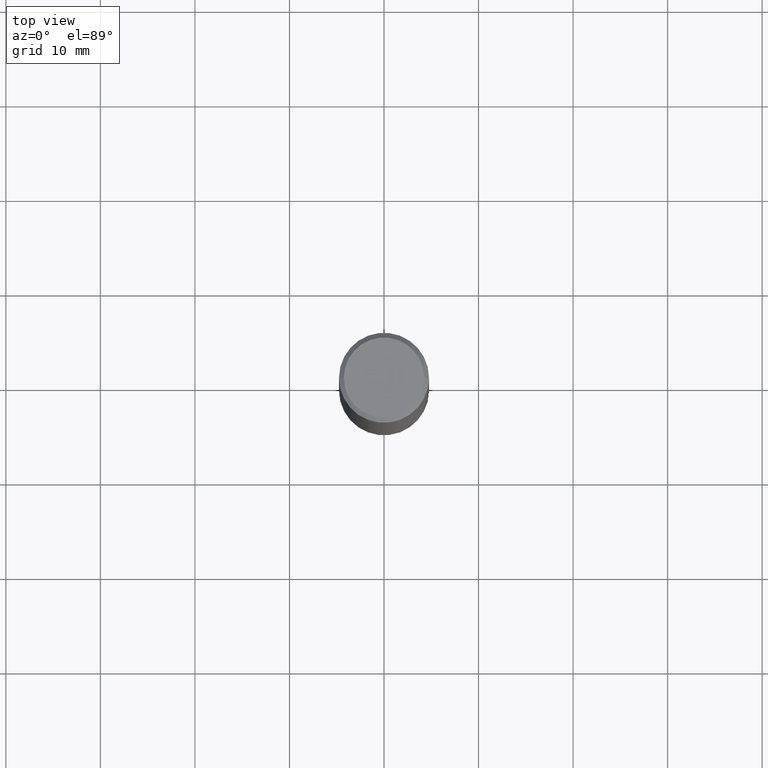
[diagram: clean part render]
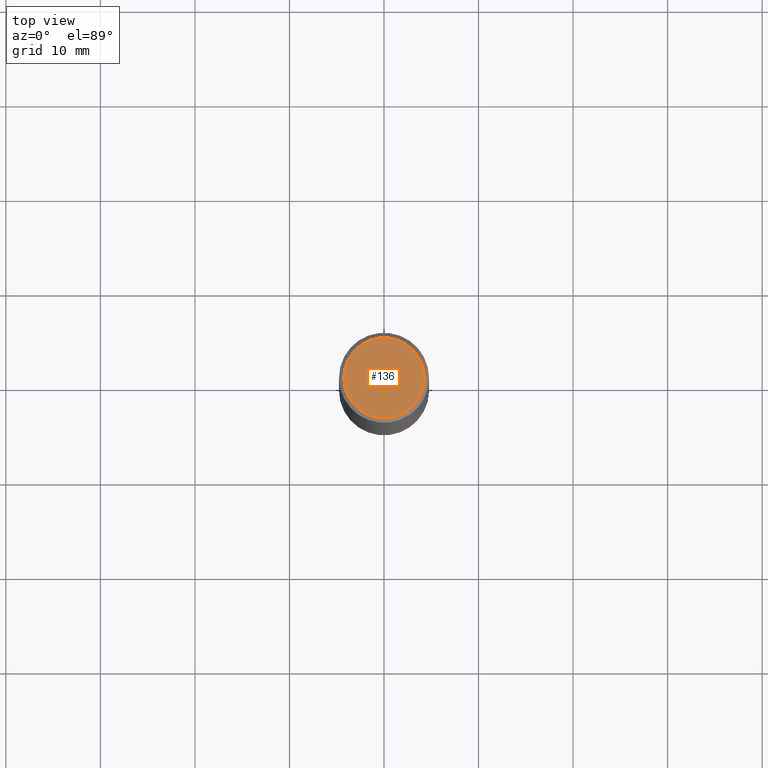
[diagram: same view with one face highlighted and labeled with its STEP entity id]
A machine part, top view. The second image highlights one B-rep face of the part: STEP entity #136.
In plain terms, the highlighted planar face has unit normal (0, -0, -1).
Its self-contained STEP definition (entity closure, byte-faithful):
#5 = AXIS2_PLACEMENT_3D ( 'NONE', #109, #310, #57 ) ;
#33 = DIRECTION ( 'NONE',  ( -1.000000000000000000, 6.982962677686265922E-15, -4.876176775795935793E-29 ) ) ;
#39 = VERTEX_POINT ( 'NONE', #298 ) ;
#41 = ORIENTED_EDGE ( 'NONE', *, *, #174, .T. ) ;
#57 = DIRECTION ( 'NONE',  ( 1.000000000000000000, -6.982962677686266711E-15, 4.876176775795936914E-29 ) ) ;
#74 = ORIENTED_EDGE ( 'NONE', *, *, #216, .T. ) ;
#109 = CARTESIAN_POINT ( 'NONE',  ( 0.000000000000000000, 0.000000000000000000, 0.000000000000000000 ) ) ;
#115 = PLANE ( 'NONE',  #141 ) ;
#116 = DIRECTION ( 'NONE',  ( 2.438088387897960049E-29, -3.491481338843145188E-15, -1.000000000000000000 ) ) ;
#136 = ADVANCED_FACE ( 'NONE', ( #256 ), #115, .F. ) ;
#141 = AXIS2_PLACEMENT_3D ( 'NONE', #344, #116, #33 ) ;
#174 = EDGE_CURVE ( 'NONE', #234, #39, #243, .T. ) ;
#203 = EDGE_LOOP ( 'NONE', ( #74, #41 ) ) ;
#216 = EDGE_CURVE ( 'NONE', #39, #234, #335, .T. ) ;
#224 = DIRECTION ( 'NONE',  ( 1.000000000000000000, -6.982962677686266711E-15, 4.876176775795936914E-29 ) ) ;
#234 = VERTEX_POINT ( 'NONE', #253 ) ;
#243 = CIRCLE ( 'NONE', #5, 0.1674999999999998157 ) ;
#253 = CARTESIAN_POINT ( 'NONE',  ( 0.1674999999999998157, -1.252653207992877105E-15, 8.469775550109232378E-30 ) ) ;
#254 = CARTESIAN_POINT ( 'NONE',  ( 0.000000000000000000, 0.000000000000000000, 0.000000000000000000 ) ) ;
#256 = FACE_OUTER_BOUND ( 'NONE', #203, .T. ) ;
#298 = CARTESIAN_POINT ( 'NONE',  ( -0.1674999999999998157, 1.204561061900879469E-15, -8.301862719484101980E-30 ) ) ;
#307 = DIRECTION ( 'NONE',  ( -2.445468806185136597E-29, 3.491481338843145583E-15, 1.000000000000000000 ) ) ;
#310 = DIRECTION ( 'NONE',  ( -2.445468806185136597E-29, 3.491481338843145583E-15, 1.000000000000000000 ) ) ;
#334 = AXIS2_PLACEMENT_3D ( 'NONE', #254, #307, #224 ) ;
#335 = CIRCLE ( 'NONE', #334, 0.1674999999999998157 ) ;
#344 = CARTESIAN_POINT ( 'NONE',  ( 1.169646248512448412E-15, 0.1674999999999998157, -5.848231242562262767E-16 ) ) ;